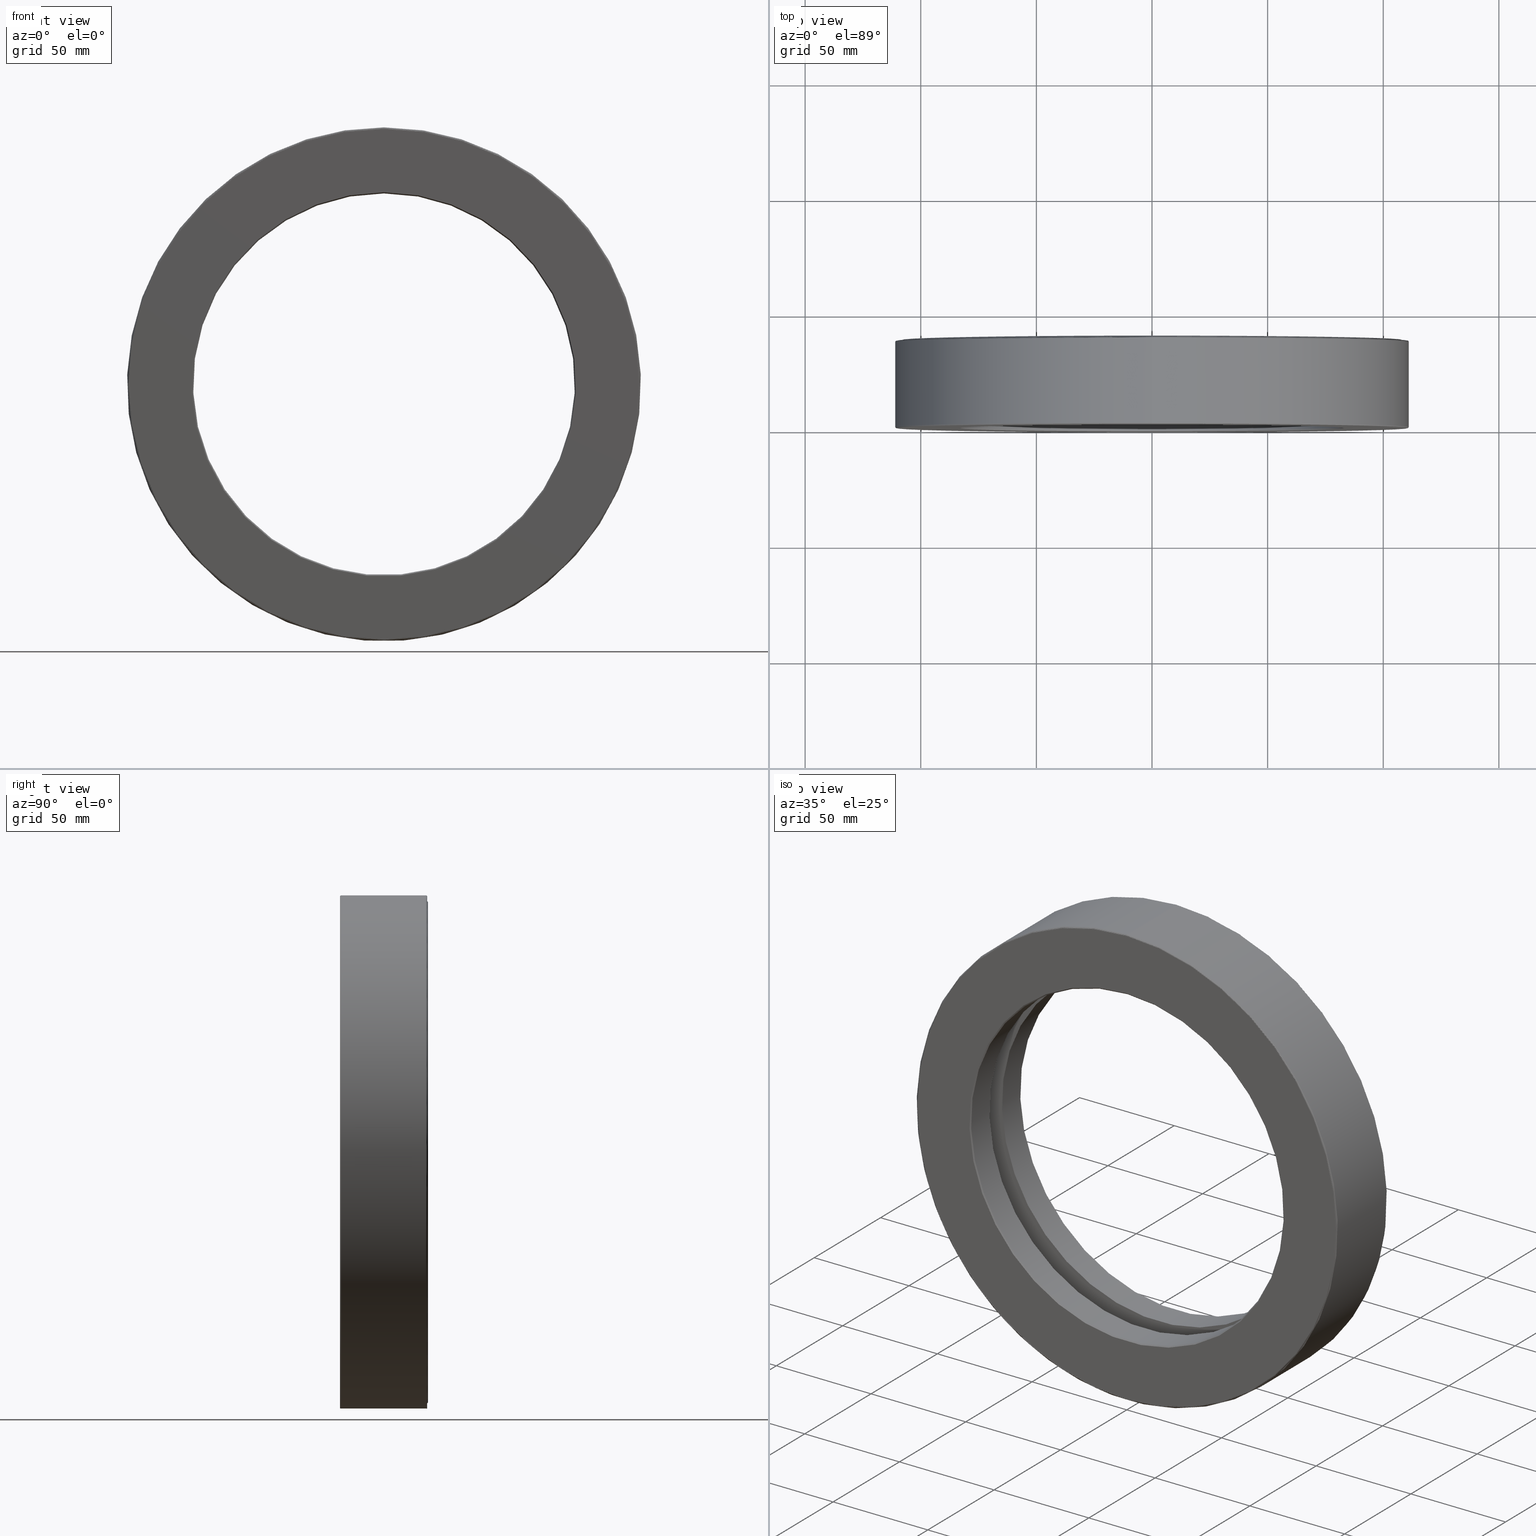
[diagram: canonical four-view strip — front | top / right | iso, engineering-drawing reading convention]
A machine part, canonical four-view strip (front | top / right | iso — engineering-drawing reading convention). The complete STEP part file that produces these views, byte-faithful:
ISO-10303-21;
HEADER;
FILE_DESCRIPTION (( 'STEP AP203' ),
    '1' );
FILE_NAME ('T-100-56.step',
    '2016-06-29T18:27:46',
    ( '' ),
    ( '' ),
    'SwSTEP 2.0',
    'SolidWorks 2016',
    '' );
FILE_SCHEMA (( 'CONFIG_CONTROL_DESIGN' ));
ENDSEC;

DATA;
#1 = ADVANCED_FACE ( 'NONE', ( #413, #515 ), #272, .F. ) ;
#2 = PERSON_AND_ORGANIZATION ( #506, #475 ) ;
#3 = EDGE_LOOP ( 'NONE', ( #251 ) ) ;
#4 = FACE_OUTER_BOUND ( 'NONE', #61, .T. ) ;
#5 = DIRECTION ( 'NONE',  ( -0.0000000000000000000, 1.000000000000000000, -0.0000000000000000000 ) ) ;
#6 = AXIS2_PLACEMENT_3D ( 'NONE', #211, #109, #68 ) ;
#7 = DIRECTION ( 'NONE',  ( 0.0000000000000000000, 0.0000000000000000000, 1.000000000000000000 ) ) ;
#8 = DIRECTION ( 'NONE',  ( -0.0000000000000000000, 1.000000000000000000, -0.0000000000000000000 ) ) ;
#9 = CYLINDRICAL_SURFACE ( 'NONE', #29, 4.355000000000001300 ) ;
#10 = APPROVAL_DATE_TIME ( #264, #276 ) ;
#11 = ORIENTED_EDGE ( 'NONE', *, *, #122, .T. ) ;
#12 = CIRCLE ( 'NONE', #497, 3.269999999999999100 ) ;
#13 = AXIS2_PLACEMENT_3D ( 'NONE', #257, #17, #253 ) ;
#14 = CARTESIAN_POINT ( 'NONE',  ( 0.0000000000000000000, 0.01499999999999997700, 0.0000000000000000000 ) ) ;
#15 = ORIENTED_EDGE ( 'NONE', *, *, #321, .F. ) ;
#16 = CIRCLE ( 'NONE', #425, 4.374999999999999100 ) ;
#17 = DIRECTION ( 'NONE',  ( 0.0000000000000000000, -1.000000000000000000, 0.0000000000000000000 ) ) ;
#18 = DIRECTION ( 'NONE',  ( 0.0000000000000000000, -0.0000000000000000000, -1.000000000000000000 ) ) ;
#19 = ADVANCED_FACE ( 'NONE', ( #287, #552 ), #27, .T. ) ;
#20 = AXIS2_PLACEMENT_3D ( 'NONE', #507, #604, #89 ) ;
#21 = FACE_OUTER_BOUND ( 'NONE', #382, .T. ) ;
#22 = VERTEX_POINT ( 'NONE', #577 ) ;
#23 = SPHERICAL_SURFACE ( 'NONE', #172, 0.3125000000000000000 ) ;
#24 = ADVANCED_FACE ( 'NONE', ( #383, #41 ), #485, .T. ) ;
#25 = CARTESIAN_POINT ( 'NONE',  ( 0.0000000000000000000, 0.7499999999999996700, 0.0000000000000000000 ) ) ;
#26 = CARTESIAN_POINT ( 'NONE',  ( 0.0000000000000000000, 0.9374999999999996700, 3.250000000000000000 ) ) ;
#27 = PLANE ( 'NONE',  #471 ) ;
#28 = CARTESIAN_POINT ( 'NONE',  ( 0.0000000000000000000, 1.412000000000000400, 4.347999999999999900 ) ) ;
#29 = AXIS2_PLACEMENT_3D ( 'NONE', #508, #558, #46 ) ;
#30 = DIRECTION ( 'NONE',  ( -0.0000000000000000000, 1.000000000000000000, -0.0000000000000000000 ) ) ;
#31 = AXIS2_PLACEMENT_3D ( 'NONE', #225, #80, #545 ) ;
#32 = ORIENTED_EDGE ( 'NONE', *, *, #168, .T. ) ;
#33 = CYLINDRICAL_SURFACE ( 'NONE', #460, 4.347999999999999900 ) ;
#34 =( NAMED_UNIT ( * ) SI_UNIT ( $, .STERADIAN. ) SOLID_ANGLE_UNIT ( ) );
#35 = DIRECTION ( 'NONE',  ( 1.000000000000000000, 0.0000000000000000000, 0.0000000000000000000 ) ) ;
#36 = DIRECTION ( 'NONE',  ( 0.0000000000000000000, 0.0000000000000000000, 1.000000000000000000 ) ) ;
#37 = ORIENTED_EDGE ( 'NONE', *, *, #249, .F. ) ;
#38 = AXIS2_PLACEMENT_3D ( 'NONE', #414, #186, #36 ) ;
#39 = FACE_OUTER_BOUND ( 'NONE', #311, .T. ) ;
#40 = ORIENTED_EDGE ( 'NONE', *, *, #215, .F. ) ;
#41 = FACE_OUTER_BOUND ( 'NONE', #217, .T. ) ;
#42 = DIRECTION ( 'NONE',  ( -0.0000000000000000000, 1.000000000000000000, -0.0000000000000000000 ) ) ;
#43 = ADVANCED_FACE ( 'NONE', ( ), #23, .T. ) ;
#44 = CARTESIAN_POINT ( 'NONE',  ( 4.033499999999999200, 0.7499999999999996700, -2.816577996044755300E-014 ) ) ;
#45 = ADVANCED_FACE ( 'NONE', ( ), #214, .T. ) ;
#46 = DIRECTION ( 'NONE',  ( 0.0000000000000000000, 0.0000000000000000000, 1.000000000000000000 ) ) ;
#47 = ORIENTED_EDGE ( 'NONE', *, *, #67, .F. ) ;
#48 = FACE_OUTER_BOUND ( 'NONE', #456, .T. ) ;
#49 = DIRECTION ( 'NONE',  ( -0.0000000000000000000, 1.000000000000000000, -0.0000000000000000000 ) ) ;
#50 = ADVANCED_FACE ( 'NONE', ( #501, #364 ), #158, .F. ) ;
#51 = CARTESIAN_POINT ( 'NONE',  ( 0.0000000000000000000, 1.484999999999999900, 0.0000000000000000000 ) ) ;
#52 = AXIS2_PLACEMENT_3D ( 'NONE', #422, #423, #151 ) ;
#53 = ORIENTED_EDGE ( 'NONE', *, *, #505, .T. ) ;
#54 = CYLINDRICAL_SURFACE ( 'NONE', #294, 3.250000000000000000 ) ;
#55 = DIRECTION ( 'NONE',  ( -0.0000000000000000000, 1.000000000000000000, -0.0000000000000000000 ) ) ;
#56 = EDGE_LOOP ( 'NONE', ( #69 ) ) ;
#57 = ORIENTED_EDGE ( 'NONE', *, *, #381, .T. ) ;
#58 = AXIS2_PLACEMENT_3D ( 'NONE', #117, #444, #387 ) ;
#59 = FACE_OUTER_BOUND ( 'NONE', #435, .T. ) ;
#60 = VERTEX_POINT ( 'NONE', #533 ) ;
#61 = EDGE_LOOP ( 'NONE', ( #530 ) ) ;
#62 = FACE_BOUND ( 'NONE', #266, .T. ) ;
#63 = ADVANCED_BREP_SHAPE_REPRESENTATION ( 'T-100-56', ( #247, #347, #271, #416, #93, #500, #562 ), #408 ) ;
#64 = AXIS2_PLACEMENT_3D ( 'NONE', #137, #42, #136 ) ;
#65 = DIRECTION ( 'NONE',  ( -0.0000000000000000000, 1.000000000000000000, -0.0000000000000000000 ) ) ;
#66 = DIRECTION ( 'NONE',  ( -0.0000000000000000000, 1.000000000000000000, -0.0000000000000000000 ) ) ;
#67 = EDGE_CURVE ( 'NONE', #520, #520, #300, .T. ) ;
#68 = DIRECTION ( 'NONE',  ( 0.0000000000000000000, 0.0000000000000000000, 1.000000000000000000 ) ) ;
#69 = ORIENTED_EDGE ( 'NONE', *, *, #321, .T. ) ;
#70 = SHAPE_DEFINITION_REPRESENTATION ( #418, #63 ) ;
#71 = EDGE_LOOP ( 'NONE', ( #318 ) ) ;
#72 = DIRECTION ( 'NONE',  ( 0.0000000000000000000, -1.000000000000000000, 0.0000000000000000000 ) ) ;
#73 = CARTESIAN_POINT ( 'NONE',  ( 0.0000000000000000000, 0.0000000000000000000, 0.0000000000000000000 ) ) ;
#74 = CARTESIAN_POINT ( 'NONE',  ( 0.0000000000000000000, 0.5625000000000002200, 3.783499999999999200 ) ) ;
#75 = CC_DESIGN_SECURITY_CLASSIFICATION ( #303, ( #551 ) ) ;
#76 = ORIENTED_EDGE ( 'NONE', *, *, #338, .F. ) ;
#77 = APPROVAL_DATE_TIME ( #203, #579 ) ;
#78 = ORIENTED_EDGE ( 'NONE', *, *, #249, .T. ) ;
#79 = FACE_OUTER_BOUND ( 'NONE', #342, .T. ) ;
#80 = DIRECTION ( 'NONE',  ( -0.0000000000000000000, 1.000000000000000000, 0.0000000000000000000 ) ) ;
#81 = ADVANCED_FACE ( 'NONE', ( #59, #348 ), #404, .F. ) ;
#82 = CARTESIAN_POINT ( 'NONE',  ( 0.0000000000000000000, 0.7499999999999996700, 0.0000000000000000000 ) ) ;
#83 = CARTESIAN_POINT ( 'NONE',  ( 0.0000000000000000000, 0.0000000000000000000, 3.269999999999999100 ) ) ;
#84 = DIRECTION ( 'NONE',  ( -0.0000000000000000000, 1.000000000000000000, 0.0000000000000000000 ) ) ;
#85 = DIRECTION ( 'NONE',  ( 0.0000000000000000000, 0.0000000000000000000, -1.000000000000000000 ) ) ;
#86 = EDGE_LOOP ( 'NONE', ( #374 ) ) ;
#87 = VERTEX_POINT ( 'NONE', #541 ) ;
#88 = DIRECTION ( 'NONE',  ( 0.0000000000000000000, 0.0000000000000000000, 1.000000000000000000 ) ) ;
#89 = DIRECTION ( 'NONE',  ( 0.0000000000000000000, 0.0000000000000000000, 1.000000000000000000 ) ) ;
#90 = CARTESIAN_POINT ( 'NONE',  ( 0.0000000000000000000, 0.01999999999999978500, 0.0000000000000000000 ) ) ;
#91 = CIRCLE ( 'NONE', #64, 4.355000000000000400 ) ;
#92 = COORDINATED_UNIVERSAL_TIME_OFFSET ( 5, 0, .BEHIND. ) ;
#93 = MANIFOLD_SOLID_BREP ( 'BALLS[2]', #352 ) ;
#94 = EDGE_LOOP ( 'NONE', ( #291 ) ) ;
#95 = FACE_OUTER_BOUND ( 'NONE', #204, .T. ) ;
#96 = ADVANCED_FACE ( 'NONE', ( #238, #236 ), #487, .F. ) ;
#97 = PLANE ( 'NONE',  #52 ) ;
#98 = DIRECTION ( 'NONE',  ( -0.0000000000000000000, 1.000000000000000000, -0.0000000000000000000 ) ) ;
#99 = CARTESIAN_POINT ( 'NONE',  ( 0.0000000000000000000, 1.484999999999999900, 0.0000000000000000000 ) ) ;
#100 = VERTEX_POINT ( 'NONE', #74 ) ;
#101 = EDGE_CURVE ( 'NONE', #163, #163, #91, .T. ) ;
#102 = ORIENTED_EDGE ( 'NONE', *, *, #138, .T. ) ;
#103 = VERTEX_POINT ( 'NONE', #305 ) ;
#104 = DIRECTION ( 'NONE',  ( -0.0000000000000000000, 1.000000000000000000, -0.0000000000000000000 ) ) ;
#105 = EDGE_CURVE ( 'NONE', #252, #252, #12, .T. ) ;
#106 = ORIENTED_EDGE ( 'NONE', *, *, #134, .F. ) ;
#107 = LOCAL_TIME ( 14, 27, 46.00000000000000000, #380 ) ;
#108 = FACE_OUTER_BOUND ( 'NONE', #580, .T. ) ;
#109 = DIRECTION ( 'NONE',  ( -0.0000000000000000000, 1.000000000000000000, -0.0000000000000000000 ) ) ;
#110 = ORIENTED_EDGE ( 'NONE', *, *, #345, .T. ) ;
#111 = FACE_OUTER_BOUND ( 'NONE', #502, .T. ) ;
#112 = DIRECTION ( 'NONE',  ( 0.0000000000000000000, 0.0000000000000000000, 1.000000000000000000 ) ) ;
#113 = ORIENTED_EDGE ( 'NONE', *, *, #505, .F. ) ;
#114 = DIRECTION ( 'NONE',  ( -0.0000000000000000000, 1.000000000000000000, -0.0000000000000000000 ) ) ;
#115 = DIRECTION ( 'NONE',  ( 0.0000000000000000000, -1.000000000000000000, 0.0000000000000000000 ) ) ;
#116 = CC_DESIGN_PERSON_AND_ORGANIZATION_ASSIGNMENT ( #434, #221, ( #478 ) ) ;
#117 = CARTESIAN_POINT ( 'NONE',  ( 0.0000000000000000000, 0.5624999999999998900, 0.0000000000000000000 ) ) ;
#118 = FACE_OUTER_BOUND ( 'NONE', #357, .T. ) ;
#119 = PERSON_AND_ORGANIZATION ( #506, #475 ) ;
#120 = APPROVAL_STATUS ( 'not_yet_approved' ) ;
#121 = CIRCLE ( 'NONE', #514, 4.355000000000001300 ) ;
#122 = EDGE_CURVE ( 'NONE', #385, #385, #503, .T. ) ;
#123 = CARTESIAN_POINT ( 'NONE',  ( 0.0000000000000000000, 0.9374999999999994400, 3.783499999999999200 ) ) ;
#124 = APPLICATION_PROTOCOL_DEFINITION ( 'international standard', 'config_control_design', 1994, #399 ) ;
#125 = APPROVAL_ROLE ( '' ) ;
#126 = DIRECTION ( 'NONE',  ( 1.000000000000000000, 0.0000000000000000000, 0.0000000000000000000 ) ) ;
#127 = DIRECTION ( 'NONE',  ( 0.0000000000000000000, 0.0000000000000000000, 1.000000000000000000 ) ) ;
#128 = CARTESIAN_POINT ( 'NONE',  ( 0.0000000000000000000, 1.500000000000000200, 0.0000000000000000000 ) ) ;
#129 = LOCAL_TIME ( 14, 27, 46.00000000000000000, #491 ) ;
#130 = DIRECTION ( 'NONE',  ( 0.0000000000000000000, -0.0000000000000000000, -1.000000000000000000 ) ) ;
#131 = CLOSED_SHELL ( 'NONE', ( #403, #96, #409, #449, #1, #19, #210, #524 ) ) ;
#132 = FACE_OUTER_BOUND ( 'NONE', #470, .T. ) ;
#133 = DIRECTION ( 'NONE',  ( -0.0000000000000000000, 1.000000000000000000, -0.0000000000000000000 ) ) ;
#134 = EDGE_CURVE ( 'NONE', #281, #281, #183, .T. ) ;
#135 = DIRECTION ( 'NONE',  ( 0.0000000000000000000, -1.000000000000000000, 0.0000000000000000000 ) ) ;
#136 = DIRECTION ( 'NONE',  ( 0.0000000000000000000, 0.0000000000000000000, 1.000000000000000000 ) ) ;
#137 = CARTESIAN_POINT ( 'NONE',  ( 0.0000000000000000000, 1.464999999999999900, 0.0000000000000000000 ) ) ;
#138 = EDGE_CURVE ( 'NONE', #267, #267, #248, .T. ) ;
#139 = CIRCLE ( 'NONE', #589, 4.355000000000001300 ) ;
#140 = DIRECTION ( 'NONE',  ( 0.0000000000000000000, 0.0000000000000000000, 1.000000000000000000 ) ) ;
#141 = CALENDAR_DATE ( 2016, 29, 6 ) ;
#142 = EDGE_LOOP ( 'NONE', ( #384 ) ) ;
#143 = EDGE_LOOP ( 'NONE', ( #463 ) ) ;
#144 = DIRECTION ( 'NONE',  ( 6.982962677686262800E-015, -0.0000000000000000000, 1.000000000000000000 ) ) ;
#145 = AXIS2_PLACEMENT_3D ( 'NONE', #355, #307, #85 ) ;
#146 = DIRECTION ( 'NONE',  ( 0.0000000000000000000, 0.0000000000000000000, 1.000000000000000000 ) ) ;
#147 = LOCAL_TIME ( 14, 27, 46.00000000000000000, #339 ) ;
#148 = ADVANCED_FACE ( 'NONE', ( ), #367, .T. ) ;
#149 = EDGE_LOOP ( 'NONE', ( #110 ) ) ;
#150 = VERTEX_POINT ( 'NONE', #543 ) ;
#151 = DIRECTION ( 'NONE',  ( 0.0000000000000000000, -0.0000000000000000000, -1.000000000000000000 ) ) ;
#152 = EDGE_LOOP ( 'NONE', ( #595 ) ) ;
#153 = DIRECTION ( 'NONE',  ( 0.0000000000000000000, 0.0000000000000000000, 1.000000000000000000 ) ) ;
#154 = CARTESIAN_POINT ( 'NONE',  ( 0.0000000000000000000, 1.464999999999999900, 0.0000000000000000000 ) ) ;
#155 = DIRECTION ( 'NONE',  ( -0.0000000000000000000, 1.000000000000000000, -0.0000000000000000000 ) ) ;
#156 = CC_DESIGN_PERSON_AND_ORGANIZATION_ASSIGNMENT ( #227, #315, ( #551 ) ) ;
#157 = CONICAL_SURFACE ( 'NONE', #548, 4.259999999999999800, 0.7853981633974529400 ) ;
#158 = TOROIDAL_SURFACE ( 'NONE', #550, 4.033499999999999200, 0.3125000000000000000 ) ;
#159 = EDGE_CURVE ( 'NONE', #327, #327, #121, .T. ) ;
#160 = AXIS2_PLACEMENT_3D ( 'NONE', #368, #459, #361 ) ;
#161 = CLOSED_SHELL ( 'NONE', ( #43 ) ) ;
#162 = AXIS2_PLACEMENT_3D ( 'NONE', #358, #586, #178 ) ;
#163 = VERTEX_POINT ( 'NONE', #448 ) ;
#164 = DIRECTION ( 'NONE',  ( 0.0000000000000000000, 0.0000000000000000000, 1.000000000000000000 ) ) ;
#165 = EDGE_CURVE ( 'NONE', #150, #150, #308, .T. ) ;
#166 = EDGE_LOOP ( 'NONE', ( #410 ) ) ;
#167 = FACE_OUTER_BOUND ( 'NONE', #86, .T. ) ;
#168 = EDGE_CURVE ( 'NONE', #103, #103, #433, .T. ) ;
#169 = DIRECTION ( 'NONE',  ( 0.0000000000000000000, 0.0000000000000000000, 1.000000000000000000 ) ) ;
#170 = ORIENTED_EDGE ( 'NONE', *, *, #288, .T. ) ;
#171 = CARTESIAN_POINT ( 'NONE',  ( 0.0000000000000000000, 0.5625000000000001100, 0.0000000000000000000 ) ) ;
#172 = AXIS2_PLACEMENT_3D ( 'NONE', #576, #535, #126 ) ;
#173 = APPROVAL_STATUS ( 'not_yet_approved' ) ;
#174 = ORIENTED_EDGE ( 'NONE', *, *, #415, .T. ) ;
#175 = FACE_BOUND ( 'NONE', #340, .T. ) ;
#176 = DATE_TIME_ROLE ( 'creation_date' ) ;
#177 = DESIGN_CONTEXT ( 'detailed design', #399, 'design' ) ;
#178 = DIRECTION ( 'NONE',  ( 0.0000000000000000000, 0.0000000000000000000, 1.000000000000000000 ) ) ;
#179 = PLANE ( 'NONE',  #239 ) ;
#180 = ORIENTED_EDGE ( 'NONE', *, *, #122, .F. ) ;
#181 = CIRCLE ( 'NONE', #222, 4.294999999999999900 ) ;
#182 = EDGE_LOOP ( 'NONE', ( #170 ) ) ;
#183 = CIRCLE ( 'NONE', #160, 3.250000000000000000 ) ;
#184 = PLANE ( 'NONE',  #397 ) ;
#185 = CC_DESIGN_APPROVAL ( #579, ( #303 ) ) ;
#186 = DIRECTION ( 'NONE',  ( -0.0000000000000000000, 1.000000000000000000, -0.0000000000000000000 ) ) ;
#187 = DIRECTION ( 'NONE',  ( -1.000000000000000000, 0.0000000000000000000, 6.982962677686262800E-015 ) ) ;
#188 = FACE_OUTER_BOUND ( 'NONE', #202, .T. ) ;
#189 = CARTESIAN_POINT ( 'NONE',  ( 0.0000000000000000000, 0.005000000000000682700, 0.0000000000000000000 ) ) ;
#190 = EDGE_LOOP ( 'NONE', ( #244 ) ) ;
#191 = CIRCLE ( 'NONE', #323, 4.355000000000000400 ) ;
#192 = DIRECTION ( 'NONE',  ( 0.0000000000000000000, 0.0000000000000000000, 1.000000000000000000 ) ) ;
#193 = ADVANCED_FACE ( 'NONE', ( ), #603, .T. ) ;
#194 = DIRECTION ( 'NONE',  ( 0.0000000000000000000, 0.0000000000000000000, 1.000000000000000000 ) ) ;
#195 = AXIS2_PLACEMENT_3D ( 'NONE', #328, #8, #194 ) ;
#196 = CARTESIAN_POINT ( 'NONE',  ( 0.0000000000000000000, 1.464999999999999900, 0.0000000000000000000 ) ) ;
#197 = ORIENTED_EDGE ( 'NONE', *, *, #278, .F. ) ;
#198 = VERTEX_POINT ( 'NONE', #216 ) ;
#199 = DIRECTION ( 'NONE',  ( -0.0000000000000000000, 1.000000000000000000, 0.0000000000000000000 ) ) ;
#200 = ORIENTED_EDGE ( 'NONE', *, *, #443, .F. ) ;
#201 = AXIS2_PLACEMENT_3D ( 'NONE', #206, #436, #523 ) ;
#202 = EDGE_LOOP ( 'NONE', ( #401 ) ) ;
#203 = DATE_AND_TIME ( #325, #564 ) ;
#204 = EDGE_LOOP ( 'NONE', ( #481 ) ) ;
#205 = CIRCLE ( 'NONE', #522, 4.294999999999999900 ) ;
#206 = CARTESIAN_POINT ( 'NONE',  ( 0.0000000000000000000, 0.0000000000000000000, 0.0000000000000000000 ) ) ;
#207 = DIRECTION ( 'NONE',  ( 0.0000000000000000000, -0.0000000000000000000, -1.000000000000000000 ) ) ;
#208 = ORIENTED_EDGE ( 'NONE', *, *, #345, .F. ) ;
#209 = VERTEX_POINT ( 'NONE', #262 ) ;
#210 = ADVANCED_FACE ( 'NONE', ( #21, #536 ), #157, .T. ) ;
#211 = CARTESIAN_POINT ( 'NONE',  ( 0.0000000000000000000, -2.240969057302716100E-016, 0.0000000000000000000 ) ) ;
#212 = APPLICATION_PROTOCOL_DEFINITION ( 'international standard', 'config_control_design', 1994, #270 ) ;
#213 = DIRECTION ( 'NONE',  ( 0.0000000000000000000, 0.0000000000000000000, 1.000000000000000000 ) ) ;
#214 = SPHERICAL_SURFACE ( 'NONE', #431, 0.3125000000000000000 ) ;
#215 = EDGE_CURVE ( 'NONE', #480, #480, #260, .T. ) ;
#216 = CARTESIAN_POINT ( 'NONE',  ( 0.0000000000000000000, 1.464999999999999900, 4.375000000000000000 ) ) ;
#217 = EDGE_LOOP ( 'NONE', ( #53 ) ) ;
#218 = CYLINDRICAL_SURFACE ( 'NONE', #472, 4.355000000000001300 ) ;
#219 = AXIS2_PLACEMENT_3D ( 'NONE', #90, #461, #322 ) ;
#220 = DIRECTION ( 'NONE',  ( 0.0000000000000000000, 0.0000000000000000000, 1.000000000000000000 ) ) ;
#221 = PERSON_AND_ORGANIZATION_ROLE ( 'creator' ) ;
#222 = AXIS2_PLACEMENT_3D ( 'NONE', #196, #155, #555 ) ;
#223 = CARTESIAN_POINT ( 'NONE',  ( -4.139163626764039800E-016, 1.499999999999999800, 0.0000000000000000000 ) ) ;
#224 =( NAMED_UNIT ( * ) PLANE_ANGLE_UNIT ( ) SI_UNIT ( $, .RADIAN. ) );
#225 = CARTESIAN_POINT ( 'NONE',  ( -5.819931260095682900E-032, -1.120484528651358600E-016, 0.0000000000000000000 ) ) ;
#226 = CARTESIAN_POINT ( 'NONE',  ( 0.0000000000000000000, 0.01499999999999997700, 4.374999999999999100 ) ) ;
#227 = PERSON_AND_ORGANIZATION ( #506, #475 ) ;
#228 = EDGE_LOOP ( 'NONE', ( #113 ) ) ;
#229 = DIRECTION ( 'NONE',  ( 0.0000000000000000000, 0.0000000000000000000, 1.000000000000000000 ) ) ;
#230 = CIRCLE ( 'NONE', #58, 4.355000000000000400 ) ;
#231 = DIRECTION ( 'NONE',  ( -0.0000000000000000000, 1.000000000000000000, -0.0000000000000000000 ) ) ;
#232 = CARTESIAN_POINT ( 'NONE',  ( 0.0000000000000000000, 0.9374999999999994400, 0.0000000000000000000 ) ) ;
#233 = EDGE_CURVE ( 'NONE', #493, #493, #517, .T. ) ;
#234 = DIMENSIONAL_EXPONENTS ( 1.000000000000000000, 0.0000000000000000000, 0.0000000000000000000, 0.0000000000000000000, 0.0000000000000000000, 0.0000000000000000000, 0.0000000000000000000 ) ;
#235 = DIRECTION ( 'NONE',  ( -3.491481338843131400E-015, 0.0000000000000000000, -1.000000000000000000 ) ) ;
#236 = FACE_OUTER_BOUND ( 'NONE', #3, .T. ) ;
#237 = DATE_AND_TIME ( #455, #107 ) ;
#238 = FACE_OUTER_BOUND ( 'NONE', #583, .T. ) ;
#239 = AXIS2_PLACEMENT_3D ( 'NONE', #490, #135, #130 ) ;
#240 = DIRECTION ( 'NONE',  ( -0.0000000000000000000, 1.000000000000000000, -0.0000000000000000000 ) ) ;
#241 = LOCAL_TIME ( 14, 27, 46.00000000000000000, #290 ) ;
#242 = ORIENTED_EDGE ( 'NONE', *, *, #288, .F. ) ;
#243 = CIRCLE ( 'NONE', #453, 4.283500000000000100 ) ;
#244 = ORIENTED_EDGE ( 'NONE', *, *, #67, .T. ) ;
#245 = FACE_OUTER_BOUND ( 'NONE', #430, .T. ) ;
#246 = APPROVAL_DATE_TIME ( #356, #544 ) ;
#247 = MANIFOLD_SOLID_BREP ( 'Revolve2[1]', #254 ) ;
#248 = CIRCLE ( 'NONE', #38, 4.259999999999999800 ) ;
#249 = EDGE_CURVE ( 'NONE', #87, #87, #353, .T. ) ;
#250 = PERSON_AND_ORGANIZATION ( #506, #475 ) ;
#251 = ORIENTED_EDGE ( 'NONE', *, *, #168, .F. ) ;
#252 = VERTEX_POINT ( 'NONE', #83 ) ;
#253 = DIRECTION ( 'NONE',  ( 0.0000000000000000000, -0.0000000000000000000, -1.000000000000000000 ) ) ;
#254 = CLOSED_SHELL ( 'NONE', ( #50, #596, #301, #372, #314, #458, #343, #24, #442, #269, #557, #494, #81, #585, #454, #484 ) ) ;
#255 = CARTESIAN_POINT ( 'NONE',  ( 0.0000000000000000000, 0.0000000000000000000, 0.0000000000000000000 ) ) ;
#256 = AXIS2_PLACEMENT_3D ( 'NONE', #388, #114, #482 ) ;
#257 = CARTESIAN_POINT ( 'NONE',  ( -2.400288185623479300E-016, 0.9374999999999994400, 0.0000000000000000000 ) ) ;
#258 = CIRCLE ( 'NONE', #195, 4.375000000000000000 ) ;
#259 = CALENDAR_DATE ( 2016, 29, 6 ) ;
#260 = CIRCLE ( 'NONE', #406, 3.250000000000000000 ) ;
#261 = CARTESIAN_POINT ( 'NONE',  ( 0.0000000000000000000, 1.500000000000000200, 3.270000000000000000 ) ) ;
#262 = CARTESIAN_POINT ( 'NONE',  ( 0.0000000000000000000, 1.484999999999999900, 4.355000000000001300 ) ) ;
#263 = CC_DESIGN_DATE_AND_TIME_ASSIGNMENT ( #602, #396, ( #303 ) ) ;
#264 = DATE_AND_TIME ( #141, #129 ) ;
#265 = CARTESIAN_POINT ( 'NONE',  ( 0.0000000000000000000, -2.240969057302716600E-016, 4.350000000000000500 ) ) ;
#266 = EDGE_LOOP ( 'NONE', ( #40 ) ) ;
#267 = VERTEX_POINT ( 'NONE', #360 ) ;
#268 = DIRECTION ( 'NONE',  ( -0.0000000000000000000, 1.000000000000000000, -0.0000000000000000000 ) ) ;
#269 = ADVANCED_FACE ( 'NONE', ( #188, #476 ), #184, .F. ) ;
#270 = APPLICATION_CONTEXT ( 'configuration controlled 3d designs of mechanical parts and assemblies' ) ;
#271 = MANIFOLD_SOLID_BREP ( 'Revolve3', #161 ) ;
#272 = CONICAL_SURFACE ( 'NONE', #370, 3.250000000000000000, 0.7853981633974415100 ) ;
#273 = DIRECTION ( 'NONE',  ( -0.0000000000000000000, 1.000000000000000000, -0.0000000000000000000 ) ) ;
#274 = APPROVAL_PERSON_ORGANIZATION ( #335, #579, #125 ) ;
#275 = EDGE_LOOP ( 'NONE', ( #208 ) ) ;
#276 = APPROVAL ( #173, 'UNSPECIFIED' ) ;
#277 = DIRECTION ( 'NONE',  ( 0.0000000000000000000, -1.000000000000000000, 0.0000000000000000000 ) ) ;
#278 = EDGE_CURVE ( 'NONE', #198, #198, #258, .T. ) ;
#279 = CARTESIAN_POINT ( 'NONE',  ( -9.634272180356778600E-032, -2.244098014517443900E-016, 0.0000000000000000000 ) ) ;
#280 = EDGE_LOOP ( 'NONE', ( #78 ) ) ;
#281 = VERTEX_POINT ( 'NONE', #588 ) ;
#282 = DIRECTION ( 'NONE',  ( -0.0000000000000000000, 1.000000000000000000, -0.0000000000000000000 ) ) ;
#283 = DIRECTION ( 'NONE',  ( -0.0000000000000000000, 1.000000000000000000, 0.0000000000000000000 ) ) ;
#284 = DIRECTION ( 'NONE',  ( 0.0000000000000000000, 0.0000000000000000000, 1.000000000000000000 ) ) ;
#285 = ORIENTED_EDGE ( 'NONE', *, *, #215, .T. ) ;
#286 = FACE_OUTER_BOUND ( 'NONE', #546, .T. ) ;
#287 = FACE_OUTER_BOUND ( 'NONE', #420, .T. ) ;
#288 = EDGE_CURVE ( 'NONE', #209, #209, #139, .T. ) ;
#289 = CC_DESIGN_PERSON_AND_ORGANIZATION_ASSIGNMENT ( #250, #398, ( #320 ) ) ;
#290 = COORDINATED_UNIVERSAL_TIME_OFFSET ( 5, 0, .BEHIND. ) ;
#291 = ORIENTED_EDGE ( 'NONE', *, *, #159, .T. ) ;
#292 = FACE_BOUND ( 'NONE', #56, .T. ) ;
#293 = DIRECTION ( 'NONE',  ( 0.0000000000000000000, 0.0000000000000000000, 1.000000000000000000 ) ) ;
#294 = AXIS2_PLACEMENT_3D ( 'NONE', #575, #569, #164 ) ;
#295 = CARTESIAN_POINT ( 'NONE',  ( 0.0000000000000000000, 1.484999999999999900, 0.0000000000000000000 ) ) ;
#296 = DIRECTION ( 'NONE',  ( 0.0000000000000000000, 0.0000000000000000000, 1.000000000000000000 ) ) ;
#297 = EDGE_LOOP ( 'NONE', ( #200 ) ) ;
#298 = AXIS2_PLACEMENT_3D ( 'NONE', #513, #282, #371 ) ;
#299 = ORIENTED_EDGE ( 'NONE', *, *, #101, .T. ) ;
#300 = CIRCLE ( 'NONE', #568, 3.270000000000000000 ) ;
#301 = ADVANCED_FACE ( 'NONE', ( #108, #391 ), #9, .F. ) ;
#302 = PLANE ( 'NONE',  #386 ) ;
#303 = SECURITY_CLASSIFICATION ( '', '', #597 ) ;
#304 = DIRECTION ( 'NONE',  ( -0.0000000000000000000, 1.000000000000000000, -0.0000000000000000000 ) ) ;
#305 = CARTESIAN_POINT ( 'NONE',  ( 0.0000000000000000000, 0.9374999999999994400, 4.283500000000000100 ) ) ;
#306 = DIRECTION ( 'NONE',  ( -0.0000000000000000000, 1.000000000000000000, -0.0000000000000000000 ) ) ;
#307 = DIRECTION ( 'NONE',  ( 0.0000000000000000000, -1.000000000000000000, 0.0000000000000000000 ) ) ;
#308 = CIRCLE ( 'NONE', #219, 3.250000000000000000 ) ;
#309 = AXIS2_PLACEMENT_3D ( 'NONE', #369, #363, #235 ) ;
#310 = VERTEX_POINT ( 'NONE', #495 ) ;
#311 = EDGE_LOOP ( 'NONE', ( #560 ) ) ;
#312 = DIRECTION ( 'NONE',  ( 0.0000000000000000000, 0.0000000000000000000, 1.000000000000000000 ) ) ;
#313 = CONICAL_SURFACE ( 'NONE', #344, 4.350000000000000500, 0.7853981633974205200 ) ;
#314 = ADVANCED_FACE ( 'NONE', ( #245, #474 ), #324, .F. ) ;
#315 = PERSON_AND_ORGANIZATION_ROLE ( 'creator' ) ;
#316 = CARTESIAN_POINT ( 'NONE',  ( 0.0000000000000000000, 0.5625000000000001100, 4.283500000000000100 ) ) ;
#317 = CARTESIAN_POINT ( 'NONE',  ( 0.0000000000000000000, 0.0000000000000000000, 0.0000000000000000000 ) ) ;
#318 = ORIENTED_EDGE ( 'NONE', *, *, #570, .F. ) ;
#319 = FACE_OUTER_BOUND ( 'NONE', #228, .T. ) ;
#320 = PRODUCT ( 'T-100-56', 'T-100-56', '', ( #350 ) ) ;
#321 = EDGE_CURVE ( 'NONE', #428, #428, #563, .T. ) ;
#322 = DIRECTION ( 'NONE',  ( 0.0000000000000000000, 0.0000000000000000000, 1.000000000000000000 ) ) ;
#323 = AXIS2_PLACEMENT_3D ( 'NONE', #512, #426, #153 ) ;
#324 = CYLINDRICAL_SURFACE ( 'NONE', #351, 4.294999999999999900 ) ;
#325 = CALENDAR_DATE ( 2016, 29, 6 ) ;
#326 = EDGE_LOOP ( 'NONE', ( #445 ) ) ;
#327 = VERTEX_POINT ( 'NONE', #452 ) ;
#328 = CARTESIAN_POINT ( 'NONE',  ( 0.0000000000000000000, 1.464999999999999900, 0.0000000000000000000 ) ) ;
#329 = CARTESIAN_POINT ( 'NONE',  ( 0.0000000000000000000, 1.464999999999999900, 0.0000000000000000000 ) ) ;
#330 = EDGE_LOOP ( 'NONE', ( #32 ) ) ;
#331 = FACE_BOUND ( 'NONE', #297, .T. ) ;
#332 = DIRECTION ( 'NONE',  ( 0.0000000000000000000, 0.0000000000000000000, 1.000000000000000000 ) ) ;
#333 = AXIS2_PLACEMENT_3D ( 'NONE', #534, #30, #354 ) ;
#334 = ORIENTED_EDGE ( 'NONE', *, *, #101, .F. ) ;
#335 = PERSON_AND_ORGANIZATION ( #506, #475 ) ;
#336 = ORIENTED_EDGE ( 'NONE', *, *, #233, .F. ) ;
#337 = CIRCLE ( 'NONE', #256, 3.250000000000000000 ) ;
#338 = EDGE_CURVE ( 'NONE', #341, #341, #205, .T. ) ;
#339 = COORDINATED_UNIVERSAL_TIME_OFFSET ( 5, 0, .BEHIND. ) ;
#340 = EDGE_LOOP ( 'NONE', ( #446 ) ) ;
#341 = VERTEX_POINT ( 'NONE', #405 ) ;
#342 = EDGE_LOOP ( 'NONE', ( #285 ) ) ;
#343 = ADVANCED_FACE ( 'NONE', ( #118, #600 ), #359, .T. ) ;
#344 = AXIS2_PLACEMENT_3D ( 'NONE', #394, #486, #521 ) ;
#345 = EDGE_CURVE ( 'NONE', #547, #547, #191, .T. ) ;
#346 = DIRECTION ( 'NONE',  ( -0.0000000000000000000, 1.000000000000000000, -0.0000000000000000000 ) ) ;
#347 = MANIFOLD_SOLID_BREP ( 'Revolve2[2]', #131 ) ;
#348 = FACE_BOUND ( 'NONE', #572, .T. ) ;
#349 = APPROVAL_PERSON_ORGANIZATION ( #419, #276, #450 ) ;
#350 = MECHANICAL_CONTEXT ( 'NONE', #270, 'mechanical' ) ;
#351 = AXIS2_PLACEMENT_3D ( 'NONE', #378, #5, #7 ) ;
#352 = CLOSED_SHELL ( 'NONE', ( #193 ) ) ;
#353 = CIRCLE ( 'NONE', #531, 4.347999999999999900 ) ;
#354 = DIRECTION ( 'NONE',  ( 0.0000000000000000000, 0.0000000000000000000, 1.000000000000000000 ) ) ;
#355 = CARTESIAN_POINT ( 'NONE',  ( 0.0000000000000000000, 0.01999999999999978500, 0.0000000000000000000 ) ) ;
#356 = DATE_AND_TIME ( #259, #147 ) ;
#357 = EDGE_LOOP ( 'NONE', ( #242 ) ) ;
#358 = CARTESIAN_POINT ( 'NONE',  ( 0.0000000000000000000, 0.0000000000000000000, 0.0000000000000000000 ) ) ;
#359 = TOROIDAL_SURFACE ( 'NONE', #565, 4.355000000000000400, 0.01999999999999992400 ) ;
#360 = CARTESIAN_POINT ( 'NONE',  ( 0.0000000000000000000, 1.499999999999999800, 4.259999999999999800 ) ) ;
#361 = DIRECTION ( 'NONE',  ( 0.0000000000000000000, 0.0000000000000000000, 1.000000000000000000 ) ) ;
#362 = PERSON_AND_ORGANIZATION_ROLE ( 'design_supplier' ) ;
#363 = DIRECTION ( 'NONE',  ( -1.000000000000000000, 0.0000000000000000000, 3.491481338843131400E-015 ) ) ;
#364 = FACE_OUTER_BOUND ( 'NONE', #379, .T. ) ;
#365 = APPROVAL_PERSON_ORGANIZATION ( #581, #544, #587 ) ;
#366 = ORIENTED_EDGE ( 'NONE', *, *, #233, .T. ) ;
#367 = SPHERICAL_SURFACE ( 'NONE', #309, 0.3125000000000000000 ) ;
#368 = CARTESIAN_POINT ( 'NONE',  ( 0.0000000000000000000, 1.480000000000000000, 0.0000000000000000000 ) ) ;
#369 = CARTESIAN_POINT ( 'NONE',  ( 1.408288998022377700E-014, 0.7499999999999996700, 4.033499999999999200 ) ) ;
#370 = AXIS2_PLACEMENT_3D ( 'NONE', #489, #304, #220 ) ;
#371 = DIRECTION ( 'NONE',  ( 0.0000000000000000000, 0.0000000000000000000, 1.000000000000000000 ) ) ;
#372 = ADVANCED_FACE ( 'NONE', ( #573, #402 ), #377, .F. ) ;
#373 = VERTEX_POINT ( 'NONE', #316 ) ;
#374 = ORIENTED_EDGE ( 'NONE', *, *, #134, .T. ) ;
#375 = FACE_OUTER_BOUND ( 'NONE', #94, .T. ) ;
#376 = CLOSED_SHELL ( 'NONE', ( #148 ) ) ;
#377 = PLANE ( 'NONE',  #390 ) ;
#378 = CARTESIAN_POINT ( 'NONE',  ( 0.0000000000000000000, 0.0000000000000000000, 0.0000000000000000000 ) ) ;
#379 = EDGE_LOOP ( 'NONE', ( #566 ) ) ;
#380 = COORDINATED_UNIVERSAL_TIME_OFFSET ( 5, 0, .BEHIND. ) ;
#381 = EDGE_CURVE ( 'NONE', #310, #310, #181, .T. ) ;
#382 = EDGE_LOOP ( 'NONE', ( #11 ) ) ;
#383 = FACE_OUTER_BOUND ( 'NONE', #509, .T. ) ;
#384 = ORIENTED_EDGE ( 'NONE', *, *, #415, .F. ) ;
#385 = VERTEX_POINT ( 'NONE', #28 ) ;
#386 = AXIS2_PLACEMENT_3D ( 'NONE', #389, #115, #207 ) ;
#387 = DIRECTION ( 'NONE',  ( 0.0000000000000000000, 0.0000000000000000000, 1.000000000000000000 ) ) ;
#388 = CARTESIAN_POINT ( 'NONE',  ( 0.0000000000000000000, 0.9374999999999996700, 0.0000000000000000000 ) ) ;
#389 = CARTESIAN_POINT ( 'NONE',  ( 0.0000000000000000000, 0.5625000000000002200, 0.0000000000000000000 ) ) ;
#390 = AXIS2_PLACEMENT_3D ( 'NONE', #329, #199, #332 ) ;
#391 = FACE_OUTER_BOUND ( 'NONE', #538, .T. ) ;
#392 = CALENDAR_DATE ( 2016, 29, 6 ) ;
#393 = CLOSED_SHELL ( 'NONE', ( #45 ) ) ;
#394 = CARTESIAN_POINT ( 'NONE',  ( 0.0000000000000000000, -2.240969057302716600E-016, 0.0000000000000000000 ) ) ;
#395 = CC_DESIGN_DATE_AND_TIME_ASSIGNMENT ( #237, #176, ( #478 ) ) ;
#396 = DATE_TIME_ROLE ( 'classification_date' ) ;
#397 = AXIS2_PLACEMENT_3D ( 'NONE', #279, #283, #511 ) ;
#398 = PERSON_AND_ORGANIZATION_ROLE ( 'design_owner' ) ;
#399 = APPLICATION_CONTEXT ( 'configuration controlled 3d designs of mechanical parts and assemblies' ) ;
#400 = CARTESIAN_POINT ( 'NONE',  ( 0.0000000000000000000, -2.247226971732172200E-016, 4.355000000000000400 ) ) ;
#401 = ORIENTED_EDGE ( 'NONE', *, *, #424, .F. ) ;
#402 = FACE_BOUND ( 'NONE', #492, .T. ) ;
#403 = ADVANCED_FACE ( 'NONE', ( #516, #286 ), #97, .T. ) ;
#404 = PLANE ( 'NONE',  #31 ) ;
#405 = CARTESIAN_POINT ( 'NONE',  ( 0.0000000000000000000, 1.484999999999999900, 4.294999999999999900 ) ) ;
#406 = AXIS2_PLACEMENT_3D ( 'NONE', #496, #231, #88 ) ;
#407 = CARTESIAN_POINT ( 'NONE',  ( 0.0000000000000000000, 0.5625000000000002200, 3.250000000000000000 ) ) ;
#408 =( GEOMETRIC_REPRESENTATION_CONTEXT ( 3 ) GLOBAL_UNCERTAINTY_ASSIGNED_CONTEXT ( ( #578 ) ) GLOBAL_UNIT_ASSIGNED_CONTEXT ( ( #584, #224, #34 ) ) REPRESENTATION_CONTEXT ( 'NONE', 'WORKASPACE' ) );
#409 = ADVANCED_FACE ( 'NONE', ( #464, #48 ), #525, .T. ) ;
#410 = ORIENTED_EDGE ( 'NONE', *, *, #424, .T. ) ;
#411 = CIRCLE ( 'NONE', #441, 4.360000000000000300 ) ;
#412 = PERSON_AND_ORGANIZATION_ROLE ( 'classification_officer' ) ;
#413 = FACE_OUTER_BOUND ( 'NONE', #190, .T. ) ;
#414 = CARTESIAN_POINT ( 'NONE',  ( 0.0000000000000000000, 1.499999999999999800, 0.0000000000000000000 ) ) ;
#415 = EDGE_CURVE ( 'NONE', #477, #477, #337, .T. ) ;
#416 = MANIFOLD_SOLID_BREP ( 'BALLS[1]', #376 ) ;
#417 = DIRECTION ( 'NONE',  ( 0.0000000000000000000, 0.0000000000000000000, 1.000000000000000000 ) ) ;
#418 = PRODUCT_DEFINITION_SHAPE ( 'NONE', 'NONE',  #478 ) ;
#419 = PERSON_AND_ORGANIZATION ( #506, #475 ) ;
#420 = EDGE_LOOP ( 'NONE', ( #102 ) ) ;
#421 = FACE_OUTER_BOUND ( 'NONE', #439, .T. ) ;
#422 = CARTESIAN_POINT ( 'NONE',  ( 1.985354646558316000E-015, 0.9374999999999994400, 0.0000000000000000000 ) ) ;
#423 = DIRECTION ( 'NONE',  ( 0.0000000000000000000, -1.000000000000000000, 0.0000000000000000000 ) ) ;
#424 = EDGE_CURVE ( 'NONE', #22, #22, #411, .T. ) ;
#425 = AXIS2_PLACEMENT_3D ( 'NONE', #14, #65, #438 ) ;
#426 = DIRECTION ( 'NONE',  ( -0.0000000000000000000, 1.000000000000000000, -0.0000000000000000000 ) ) ;
#427 = ORIENTED_EDGE ( 'NONE', *, *, #165, .F. ) ;
#428 = VERTEX_POINT ( 'NONE', #265 ) ;
#429 = EDGE_LOOP ( 'NONE', ( #106 ) ) ;
#430 = EDGE_LOOP ( 'NONE', ( #553 ) ) ;
#431 = AXIS2_PLACEMENT_3D ( 'NONE', #451, #542, #488 ) ;
#432 = CC_DESIGN_PERSON_AND_ORGANIZATION_ASSIGNMENT ( #119, #362, ( #551 ) ) ;
#433 = CIRCLE ( 'NONE', #437, 4.283500000000000100 ) ;
#434 = PERSON_AND_ORGANIZATION ( #506, #475 ) ;
#435 = EDGE_LOOP ( 'NONE', ( #15 ) ) ;
#436 = DIRECTION ( 'NONE',  ( -0.0000000000000000000, 1.000000000000000000, -0.0000000000000000000 ) ) ;
#437 = AXIS2_PLACEMENT_3D ( 'NONE', #549, #240, #417 ) ;
#438 = DIRECTION ( 'NONE',  ( 0.0000000000000000000, 0.0000000000000000000, 1.000000000000000000 ) ) ;
#439 = EDGE_LOOP ( 'NONE', ( #467 ) ) ;
#440 = DIRECTION ( 'NONE',  ( -0.0000000000000000000, 1.000000000000000000, -0.0000000000000000000 ) ) ;
#441 = AXIS2_PLACEMENT_3D ( 'NONE', #483, #440, #169 ) ;
#442 = ADVANCED_FACE ( 'NONE', ( #319, #594 ), #457, .T. ) ;
#443 = EDGE_CURVE ( 'NONE', #373, #373, #243, .T. ) ;
#444 = DIRECTION ( 'NONE',  ( -0.0000000000000000000, 1.000000000000000000, -0.0000000000000000000 ) ) ;
#445 = ORIENTED_EDGE ( 'NONE', *, *, #138, .F. ) ;
#446 = ORIENTED_EDGE ( 'NONE', *, *, #165, .T. ) ;
#447 = CIRCLE ( 'NONE', #333, 3.783499999999999200 ) ;
#448 = CARTESIAN_POINT ( 'NONE',  ( 0.0000000000000000000, 1.464999999999999900, 4.355000000000000400 ) ) ;
#449 = ADVANCED_FACE ( 'NONE', ( #167, #468 ), #510, .F. ) ;
#450 = APPROVAL_ROLE ( '' ) ;
#451 = CARTESIAN_POINT ( 'NONE',  ( -4.224866994067132600E-014, 0.7499999999999996700, -4.033499999999999200 ) ) ;
#452 = CARTESIAN_POINT ( 'NONE',  ( 0.0000000000000000000, 0.005000000000000682700, 4.355000000000001300 ) ) ;
#453 = AXIS2_PLACEMENT_3D ( 'NONE', #171, #346, #293 ) ;
#454 = ADVANCED_FACE ( 'NONE', ( #111, #79 ), #54, .F. ) ;
#455 = CALENDAR_DATE ( 2016, 29, 6 ) ;
#456 = EDGE_LOOP ( 'NONE', ( #336 ) ) ;
#457 = CONICAL_SURFACE ( 'NONE', #6, 4.360000000000000300, 0.7853981633974135300 ) ;
#458 = ADVANCED_FACE ( 'NONE', ( #561, #539 ), #532, .F. ) ;
#459 = DIRECTION ( 'NONE',  ( -0.0000000000000000000, 1.000000000000000000, -0.0000000000000000000 ) ) ;
#460 = AXIS2_PLACEMENT_3D ( 'NONE', #73, #66, #112 ) ;
#461 = DIRECTION ( 'NONE',  ( -0.0000000000000000000, 1.000000000000000000, -0.0000000000000000000 ) ) ;
#462 = LENGTH_MEASURE_WITH_UNIT ( LENGTH_MEASURE( 0.02539999999999999900 ), #591 );
#463 = ORIENTED_EDGE ( 'NONE', *, *, #338, .T. ) ;
#464 = FACE_BOUND ( 'NONE', #519, .T. ) ;
#465 = DIRECTION ( 'NONE',  ( 0.0000000000000000000, 0.0000000000000000000, -1.000000000000000000 ) ) ;
#466 = CARTESIAN_POINT ( 'NONE',  ( 0.0000000000000000000, 0.9374999999999996700, 0.0000000000000000000 ) ) ;
#467 = ORIENTED_EDGE ( 'NONE', *, *, #570, .T. ) ;
#468 = FACE_OUTER_BOUND ( 'NONE', #142, .T. ) ;
#469 = AXIS2_PLACEMENT_3D ( 'NONE', #232, #273, #556 ) ;
#470 = EDGE_LOOP ( 'NONE', ( #180 ) ) ;
#471 = AXIS2_PLACEMENT_3D ( 'NONE', #223, #84, #229 ) ;
#472 = AXIS2_PLACEMENT_3D ( 'NONE', #255, #574, #296 ) ;
#473 = EDGE_CURVE ( 'NONE', #60, #60, #230, .T. ) ;
#474 = FACE_OUTER_BOUND ( 'NONE', #143, .T. ) ;
#475 = ORGANIZATION ( 'UNSPECIFIED', 'UNSPECIFIED', '' ) ;
#476 = FACE_BOUND ( 'NONE', #149, .T. ) ;
#477 = VERTEX_POINT ( 'NONE', #26 ) ;
#478 = PRODUCT_DEFINITION ( 'UNKNOWN', '', #551, #177 ) ;
#479 = ORIENTED_EDGE ( 'NONE', *, *, #473, .F. ) ;
#480 = VERTEX_POINT ( 'NONE', #407 ) ;
#481 = ORIENTED_EDGE ( 'NONE', *, *, #473, .T. ) ;
#482 = DIRECTION ( 'NONE',  ( 0.0000000000000000000, 0.0000000000000000000, 1.000000000000000000 ) ) ;
#483 = CARTESIAN_POINT ( 'NONE',  ( 0.0000000000000000000, -2.240969057302716100E-016, 0.0000000000000000000 ) ) ;
#484 = ADVANCED_FACE ( 'NONE', ( #62, #421 ), #302, .F. ) ;
#485 = CYLINDRICAL_SURFACE ( 'NONE', #162, 4.375000000000000000 ) ;
#486 = DIRECTION ( 'NONE',  ( -0.0000000000000000000, 1.000000000000000000, -0.0000000000000000000 ) ) ;
#487 = TOROIDAL_SURFACE ( 'NONE', #606, 4.033499999999999200, 0.3125000000000002200 ) ;
#488 = DIRECTION ( 'NONE',  ( 1.047444401652940600E-014, 0.0000000000000000000, 1.000000000000000000 ) ) ;
#489 = CARTESIAN_POINT ( 'NONE',  ( 0.0000000000000000000, 1.480000000000000000, 0.0000000000000000000 ) ) ;
#490 = CARTESIAN_POINT ( 'NONE',  ( -2.686476392370985000E-015, 0.5625000000000001100, 0.0000000000000000000 ) ) ;
#491 = COORDINATED_UNIVERSAL_TIME_OFFSET ( 5, 0, .BEHIND. ) ;
#492 = EDGE_LOOP ( 'NONE', ( #57 ) ) ;
#493 = VERTEX_POINT ( 'NONE', #123 ) ;
#494 = ADVANCED_FACE ( 'NONE', ( #39, #292 ), #313, .T. ) ;
#495 = CARTESIAN_POINT ( 'NONE',  ( 0.0000000000000000000, 1.464999999999999900, 4.294999999999999900 ) ) ;
#496 = CARTESIAN_POINT ( 'NONE',  ( 0.0000000000000000000, 0.5625000000000002200, 0.0000000000000000000 ) ) ;
#497 = AXIS2_PLACEMENT_3D ( 'NONE', #599, #504, #140 ) ;
#498 = PRODUCT_RELATED_PRODUCT_CATEGORY ( 'detail', '', ( #320 ) ) ;
#499 = CARTESIAN_POINT ( 'NONE',  ( 0.0000000000000000000, 1.499999999999999800, 0.0000000000000000000 ) ) ;
#500 = MANIFOLD_SOLID_BREP ( 'BALLS[3]', #393 ) ;
#501 = FACE_OUTER_BOUND ( 'NONE', #71, .T. ) ;
#502 = EDGE_LOOP ( 'NONE', ( #427 ) ) ;
#503 = CIRCLE ( 'NONE', #20, 4.347999999999999900 ) ;
#504 = DIRECTION ( 'NONE',  ( -0.0000000000000000000, 1.000000000000000000, -0.0000000000000000000 ) ) ;
#505 = EDGE_CURVE ( 'NONE', #590, #590, #16, .T. ) ;
#506 = PERSON ( 'UNSPECIFIED', 'UNSPECIFIED', 'UNSPECIFIED', ('UNSPECIFIED'), ('UNSPECIFIED'), ('UNSPECIFIED') ) ;
#507 = CARTESIAN_POINT ( 'NONE',  ( 0.0000000000000000000, 1.412000000000000400, 0.0000000000000000000 ) ) ;
#508 = CARTESIAN_POINT ( 'NONE',  ( 0.0000000000000000000, 0.0000000000000000000, 0.0000000000000000000 ) ) ;
#509 = EDGE_LOOP ( 'NONE', ( #197 ) ) ;
#510 = CYLINDRICAL_SURFACE ( 'NONE', #201, 3.250000000000000000 ) ;
#511 = DIRECTION ( 'NONE',  ( 0.0000000000000000000, 0.0000000000000000000, 1.000000000000000000 ) ) ;
#512 = CARTESIAN_POINT ( 'NONE',  ( 0.0000000000000000000, -2.247226971732172200E-016, 0.0000000000000000000 ) ) ;
#513 = CARTESIAN_POINT ( 'NONE',  ( 0.0000000000000000000, -2.240969057302716600E-016, 0.0000000000000000000 ) ) ;
#514 = AXIS2_PLACEMENT_3D ( 'NONE', #189, #601, #146 ) ;
#515 = FACE_BOUND ( 'NONE', #429, .T. ) ;
#516 = FACE_BOUND ( 'NONE', #330, .T. ) ;
#517 = CIRCLE ( 'NONE', #469, 3.783499999999999200 ) ;
#518 = CC_DESIGN_PERSON_AND_ORGANIZATION_ASSIGNMENT ( #2, #412, ( #303 ) ) ;
#519 = EDGE_LOOP ( 'NONE', ( #174 ) ) ;
#520 = VERTEX_POINT ( 'NONE', #261 ) ;
#521 = DIRECTION ( 'NONE',  ( 0.0000000000000000000, 0.0000000000000000000, 1.000000000000000000 ) ) ;
#522 = AXIS2_PLACEMENT_3D ( 'NONE', #51, #49, #559 ) ;
#523 = DIRECTION ( 'NONE',  ( 0.0000000000000000000, 0.0000000000000000000, 1.000000000000000000 ) ) ;
#524 = ADVANCED_FACE ( 'NONE', ( #567, #132 ), #33, .T. ) ;
#525 = PLANE ( 'NONE',  #13 ) ;
#526 = AXIS2_PLACEMENT_3D ( 'NONE', #295, #72, #18 ) ;
#527 = EDGE_LOOP ( 'NONE', ( #47 ) ) ;
#528 = FACE_OUTER_BOUND ( 'NONE', #275, .T. ) ;
#529 = EDGE_LOOP ( 'NONE', ( #76 ) ) ;
#530 = ORIENTED_EDGE ( 'NONE', *, *, #105, .F. ) ;
#531 = AXIS2_PLACEMENT_3D ( 'NONE', #466, #55, #605 ) ;
#532 = PLANE ( 'NONE',  #526 ) ;
#533 = CARTESIAN_POINT ( 'NONE',  ( 0.0000000000000000000, 0.5624999999999998900, 4.355000000000000400 ) ) ;
#534 = CARTESIAN_POINT ( 'NONE',  ( 0.0000000000000000000, 0.5625000000000002200, 0.0000000000000000000 ) ) ;
#535 = DIRECTION ( 'NONE',  ( 0.0000000000000000000, 0.0000000000000000000, -1.000000000000000000 ) ) ;
#536 = FACE_BOUND ( 'NONE', #326, .T. ) ;
#537 = APPROVAL_STATUS ( 'not_yet_approved' ) ;
#538 = EDGE_LOOP ( 'NONE', ( #299 ) ) ;
#539 = FACE_OUTER_BOUND ( 'NONE', #182, .T. ) ;
#540 = DIRECTION ( 'NONE',  ( 0.0000000000000000000, 0.0000000000000000000, 1.000000000000000000 ) ) ;
#541 = CARTESIAN_POINT ( 'NONE',  ( 0.0000000000000000000, 0.9374999999999996700, 4.347999999999999900 ) ) ;
#542 = DIRECTION ( 'NONE',  ( 1.000000000000000000, 0.0000000000000000000, -1.047444401652940600E-014 ) ) ;
#543 = CARTESIAN_POINT ( 'NONE',  ( 0.0000000000000000000, 0.01999999999999978500, 3.250000000000000000 ) ) ;
#544 = APPROVAL ( #537, 'UNSPECIFIED' ) ;
#545 = DIRECTION ( 'NONE',  ( 0.0000000000000000000, 0.0000000000000000000, 1.000000000000000000 ) ) ;
#546 = EDGE_LOOP ( 'NONE', ( #37 ) ) ;
#547 = VERTEX_POINT ( 'NONE', #400 ) ;
#548 = AXIS2_PLACEMENT_3D ( 'NONE', #499, #277, #465 ) ;
#549 = CARTESIAN_POINT ( 'NONE',  ( 0.0000000000000000000, 0.9374999999999994400, 0.0000000000000000000 ) ) ;
#550 = AXIS2_PLACEMENT_3D ( 'NONE', #25, #133, #540 ) ;
#551 = PRODUCT_DEFINITION_FORMATION_WITH_SPECIFIED_SOURCE ( 'ANY', '', #320, .NOT_KNOWN. ) ;
#552 = FACE_BOUND ( 'NONE', #527, .T. ) ;
#553 = ORIENTED_EDGE ( 'NONE', *, *, #381, .F. ) ;
#554 = CONICAL_SURFACE ( 'NONE', #145, 3.250000000000000000, 0.7853981633974346200 ) ;
#555 = DIRECTION ( 'NONE',  ( 0.0000000000000000000, 0.0000000000000000000, 1.000000000000000000 ) ) ;
#556 = DIRECTION ( 'NONE',  ( 0.0000000000000000000, 0.0000000000000000000, 1.000000000000000000 ) ) ;
#557 = ADVANCED_FACE ( 'NONE', ( #528, #375 ), #218, .F. ) ;
#558 = DIRECTION ( 'NONE',  ( -0.0000000000000000000, 1.000000000000000000, -0.0000000000000000000 ) ) ;
#559 = DIRECTION ( 'NONE',  ( 0.0000000000000000000, 0.0000000000000000000, 1.000000000000000000 ) ) ;
#560 = ORIENTED_EDGE ( 'NONE', *, *, #159, .F. ) ;
#561 = FACE_BOUND ( 'NONE', #529, .T. ) ;
#562 = AXIS2_PLACEMENT_3D ( 'NONE', #317, #127, #35 ) ;
#563 = CIRCLE ( 'NONE', #298, 4.350000000000000500 ) ;
#564 = LOCAL_TIME ( 14, 27, 46.00000000000000000, #92 ) ;
#565 = AXIS2_PLACEMENT_3D ( 'NONE', #154, #98, #284 ) ;
#566 = ORIENTED_EDGE ( 'NONE', *, *, #443, .T. ) ;
#567 = FACE_OUTER_BOUND ( 'NONE', #280, .T. ) ;
#568 = AXIS2_PLACEMENT_3D ( 'NONE', #128, #306, #312 ) ;
#569 = DIRECTION ( 'NONE',  ( -0.0000000000000000000, 1.000000000000000000, -0.0000000000000000000 ) ) ;
#570 = EDGE_CURVE ( 'NONE', #100, #100, #447, .T. ) ;
#571 = CC_DESIGN_APPROVAL ( #544, ( #551 ) ) ;
#572 = EDGE_LOOP ( 'NONE', ( #582 ) ) ;
#573 = FACE_OUTER_BOUND ( 'NONE', #592, .T. ) ;
#574 = DIRECTION ( 'NONE',  ( -0.0000000000000000000, 1.000000000000000000, -0.0000000000000000000 ) ) ;
#575 = CARTESIAN_POINT ( 'NONE',  ( 0.0000000000000000000, 0.0000000000000000000, 0.0000000000000000000 ) ) ;
#576 = CARTESIAN_POINT ( 'NONE',  ( -4.033499999999999200, 0.7499999999999996700, 0.0000000000000000000 ) ) ;
#577 = CARTESIAN_POINT ( 'NONE',  ( 0.0000000000000000000, -2.240969057302716100E-016, 4.360000000000000300 ) ) ;
#578 = UNCERTAINTY_MEASURE_WITH_UNIT (LENGTH_MEASURE( 1.000000000000000100E-005 ), #584, 'distance_accuracy_value', 'NONE');
#579 = APPROVAL ( #120, 'UNSPECIFIED' ) ;
#580 = EDGE_LOOP ( 'NONE', ( #479 ) ) ;
#581 = PERSON_AND_ORGANIZATION ( #506, #475 ) ;
#582 = ORIENTED_EDGE ( 'NONE', *, *, #105, .T. ) ;
#583 = EDGE_LOOP ( 'NONE', ( #366 ) ) ;
#584 =( CONVERSION_BASED_UNIT ( 'INCH', #462 ) LENGTH_UNIT ( ) NAMED_UNIT ( #234 ) );
#585 = ADVANCED_FACE ( 'NONE', ( #4, #175 ), #554, .F. ) ;
#586 = DIRECTION ( 'NONE',  ( -0.0000000000000000000, 1.000000000000000000, -0.0000000000000000000 ) ) ;
#587 = APPROVAL_ROLE ( '' ) ;
#588 = CARTESIAN_POINT ( 'NONE',  ( 0.0000000000000000000, 1.480000000000000000, 3.250000000000000000 ) ) ;
#589 = AXIS2_PLACEMENT_3D ( 'NONE', #99, #104, #192 ) ;
#590 = VERTEX_POINT ( 'NONE', #226 ) ;
#591 =( LENGTH_UNIT ( ) NAMED_UNIT ( * ) SI_UNIT ( $, .METRE. ) );
#592 = EDGE_LOOP ( 'NONE', ( #334 ) ) ;
#593 = AXIS2_PLACEMENT_3D ( 'NONE', #44, #144, #187 ) ;
#594 = FACE_BOUND ( 'NONE', #166, .T. ) ;
#595 = ORIENTED_EDGE ( 'NONE', *, *, #278, .T. ) ;
#596 = ADVANCED_FACE ( 'NONE', ( #331, #95 ), #179, .F. ) ;
#597 = SECURITY_CLASSIFICATION_LEVEL ( 'unclassified' ) ;
#598 = CC_DESIGN_APPROVAL ( #276, ( #478 ) ) ;
#599 = CARTESIAN_POINT ( 'NONE',  ( 0.0000000000000000000, 0.0000000000000000000, 0.0000000000000000000 ) ) ;
#600 = FACE_OUTER_BOUND ( 'NONE', #152, .T. ) ;
#601 = DIRECTION ( 'NONE',  ( -0.0000000000000000000, 1.000000000000000000, -0.0000000000000000000 ) ) ;
#602 = DATE_AND_TIME ( #392, #241 ) ;
#603 = SPHERICAL_SURFACE ( 'NONE', #593, 0.3125000000000000000 ) ;
#604 = DIRECTION ( 'NONE',  ( -0.0000000000000000000, 1.000000000000000000, -0.0000000000000000000 ) ) ;
#605 = DIRECTION ( 'NONE',  ( 0.0000000000000000000, 0.0000000000000000000, 1.000000000000000000 ) ) ;
#606 = AXIS2_PLACEMENT_3D ( 'NONE', #82, #268, #213 ) ;
ENDSEC;
END-ISO-10303-21;
